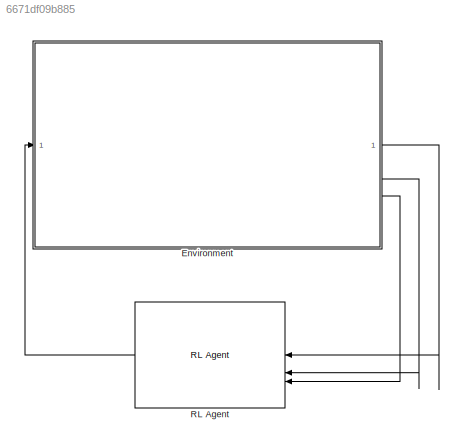
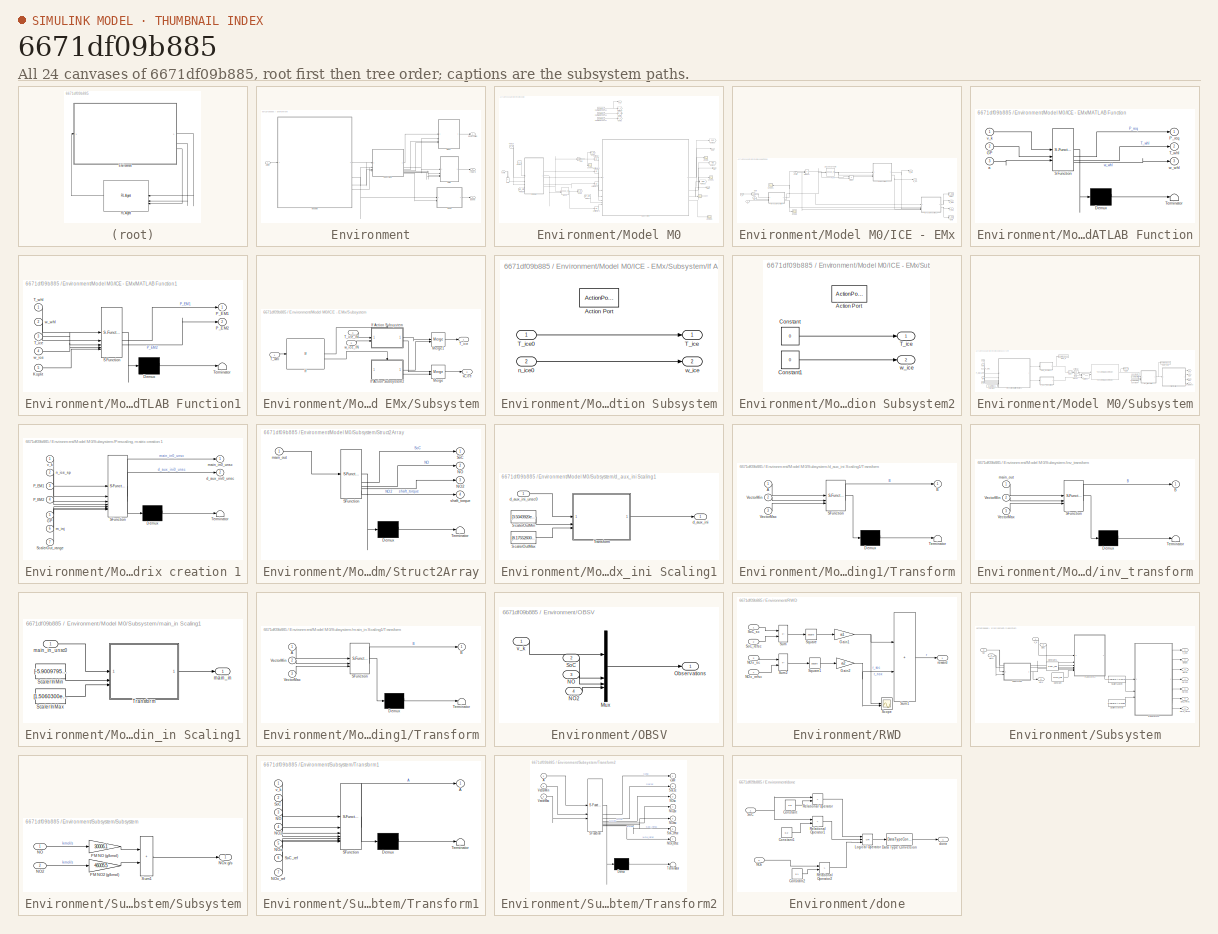
[diagram: thumbnail index - all 24 canvases of the model, root first then tree order]
MODEL slx_6671df09b885
KIND model
CONFIG AbsTol = auto
CONFIG EnableMultiTasking = off
CONFIG FixedStep = auto
CONFIG MaxStep = auto
CONFIG MinStep = auto
CONFIG RelTol = 1e-3
CONFIG SampleTimeConstraint = Unconstrained
CONFIG SolverName = VariableStepAuto
CONFIG StartTime = 0.0
CONFIG StopTime = 5
BLOCK [SubSystem] Environment
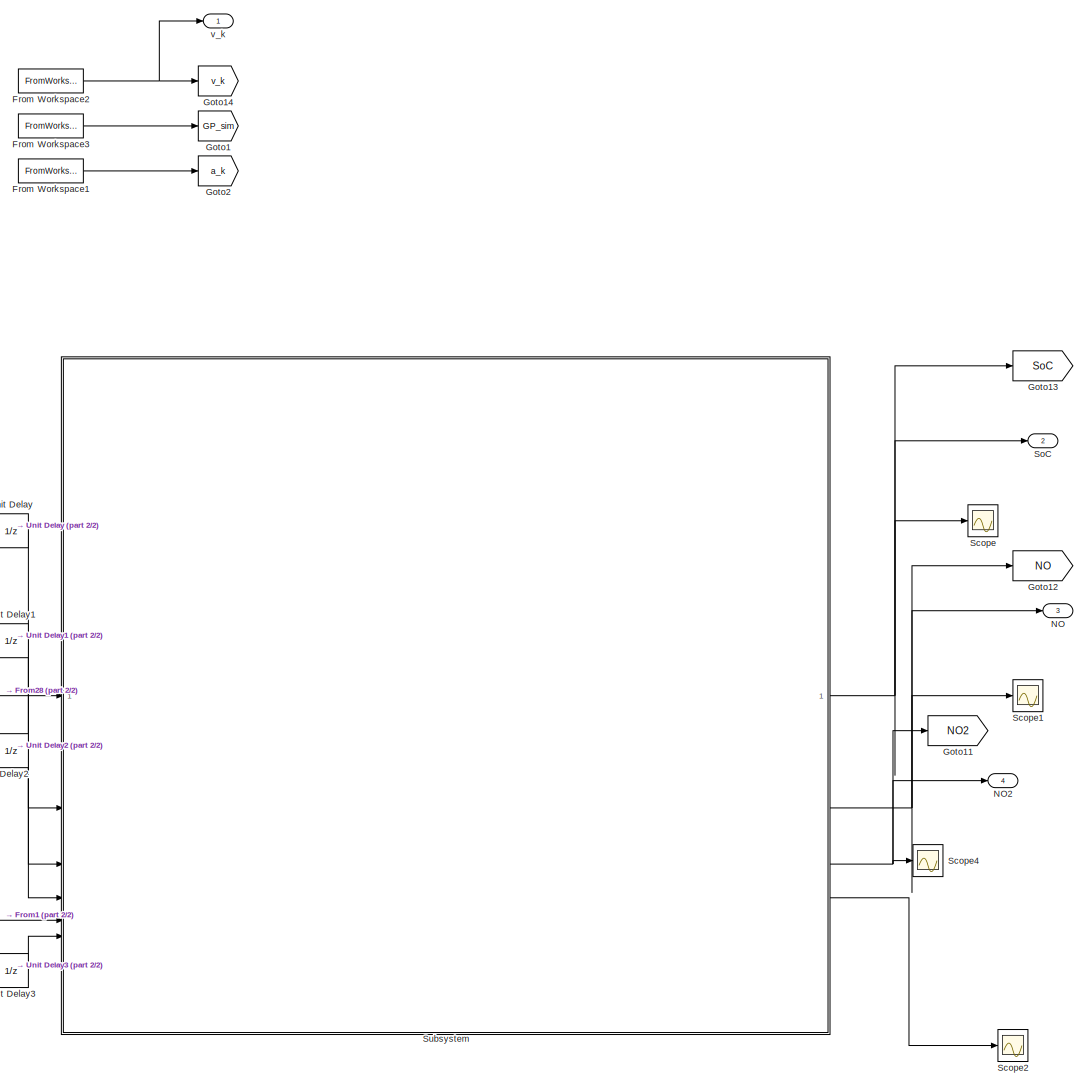
[diagram: Environment/Model M0 - part 1/2, right side, full height]
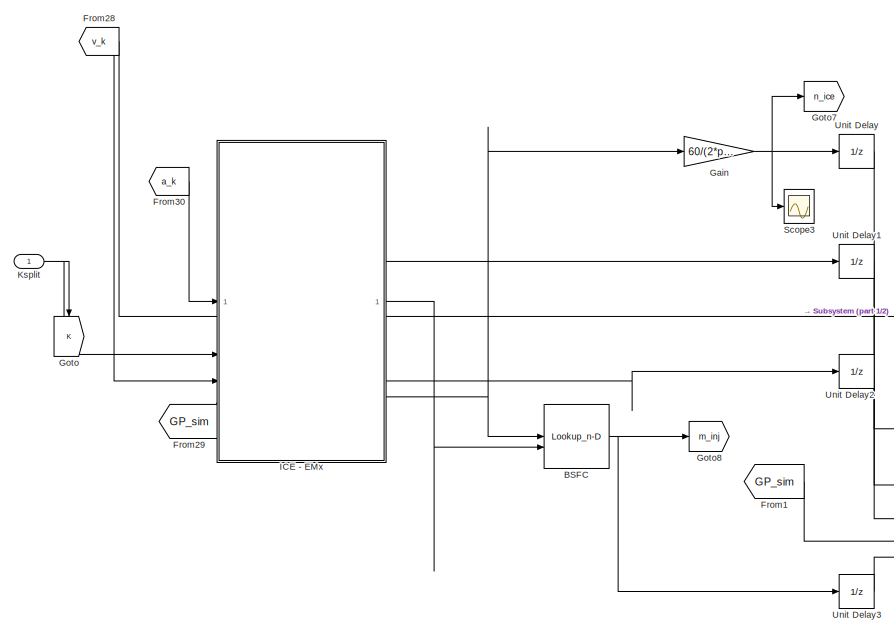
[diagram: Environment/Model M0 - part 2/2, middle left region]
BLOCK [SubSystem] Environment/Model M0
BLOCK [Lookup_n-D] Environment/Model M0/BSFC
  BreakpointsForDimension1 = wice_bp_BSFC
  BreakpointsForDimension2 = Tice_bp_BSFC
  InputPortMap = u0,u1
  InternalRulePriority = Speed
  RndMeth = Simplest
  Table = BSFC
BLOCK [FromWorkspace] Environment/Model M0/From Workspace1
  SampleTime = 1
  VariableName = a_ref
BLOCK [FromWorkspace] Environment/Model M0/From Workspace2
  SampleTime = 1
  VariableName = vk_ref
BLOCK [FromWorkspace] Environment/Model M0/From Workspace3
  SampleTime = 1
  VariableName = GP_ref
BLOCK [From] Environment/Model M0/From1
  GotoTag = GP_sim
  TagVisibility = global
BLOCK [From] Environment/Model M0/From28
  GotoTag = v_k
  TagVisibility = global
BLOCK [From] Environment/Model M0/From29
  GotoTag = GP_sim
  TagVisibility = global
BLOCK [From] Environment/Model M0/From30
  GotoTag = a_k
  TagVisibility = global
BLOCK [Gain] Environment/Model M0/Gain
  Gain = 60/(2*pi)
BLOCK [Goto] Environment/Model M0/Goto
  GotoTag = K
  NameLocation = left
BLOCK [Goto] Environment/Model M0/Goto1
  GotoTag = GP_sim
  TagVisibility = global
BLOCK [Goto] Environment/Model M0/Goto11
  GotoTag = NO2
BLOCK [Goto] Environment/Model M0/Goto12
  GotoTag = NO
BLOCK [Goto] Environment/Model M0/Goto13
  GotoTag = SoC
BLOCK [Goto] Environment/Model M0/Goto14
  GotoTag = v_k
  TagVisibility = global
BLOCK [Goto] Environment/Model M0/Goto2
  GotoTag = a_k
  TagVisibility = global
BLOCK [Goto] Environment/Model M0/Goto7
  GotoTag = n_ice
  TagVisibility = global
BLOCK [Goto] Environment/Model M0/Goto8
  GotoTag = m_inj
  TagVisibility = global
BLOCK [SubSystem] Environment/Model M0/ICE - EMx
BLOCK [Lookup_n-D] Environment/Model M0/ICE - EMx/1-D Lookup Table
  BreakpointsForDimension1 = Eng_pwr_opt_list
  InputPortMap = u0
  InternalRulePriority = Speed
  NumberOfTableDimensions = 1
  RndMeth = Simplest
  Table = W_list
BLOCK [Product] Environment/Model M0/ICE - EMx/Divide
  Inputs = */
BLOCK [Inport] Environment/Model M0/ICE - EMx/GP
  Port = 4
BLOCK [Gain] Environment/Model M0/ICE - EMx/Gain
  Gain = 1/3.6
BLOCK [Goto] Environment/Model M0/ICE - EMx/Goto
  GotoTag = P_EM2
  TagVisibility = global
BLOCK [Goto] Environment/Model M0/ICE - EMx/Goto1
  GotoTag = P_EM1
  TagVisibility = global
BLOCK [Inport] Environment/Model M0/ICE - EMx/Ksplit
  Port = 2
BLOCK [SubSystem] Environment/Model M0/ICE - EMx/MATLAB Function
  ErrorFcn = Stateflow.Translate.translate
  PermitHierarchicalResolution = ExplicitOnly
  SFBlockType = MATLAB Function
  TreatAsAtomicUnit = on
BLOCK [Demux] Environment/Model M0/ICE - EMx/MATLAB Function/ Demux 
  Outputs = 1
BLOCK [S-Function] Environment/Model M0/ICE - EMx/MATLAB Function/ SFunction 
  EnableBusSupport = on
  FunctionName = sf_sfun
  PortCounts = [3 4]
  SFcnIsStateOwnerBlock = off
  SFunctionDeploymentMode = off
  Tag = Stateflow S-Function 6
BLOCK [Terminator] Environment/Model M0/ICE - EMx/MATLAB Function/ Terminator 
BLOCK [Inport] Environment/Model M0/ICE - EMx/MATLAB Function/GP
  Port = 2
BLOCK [Outport] Environment/Model M0/ICE - EMx/MATLAB Function/P_req
BLOCK [Outport] Environment/Model M0/ICE - EMx/MATLAB Function/T_whl
  Port = 2
BLOCK [Inport] Environment/Model M0/ICE - EMx/MATLAB Function/a
  Port = 3
BLOCK [Inport] Environment/Model M0/ICE - EMx/MATLAB Function/v_k
BLOCK [Outport] Environment/Model M0/ICE - EMx/MATLAB Function/w_whl
  Port = 3
BLOCK [SubSystem] Environment/Model M0/ICE - EMx/MATLAB Function1
  ErrorFcn = Stateflow.Translate.translate
  PermitHierarchicalResolution = ExplicitOnly
  SFBlockType = MATLAB Function
  TreatAsAtomicUnit = on
BLOCK [Demux] Environment/Model M0/ICE - EMx/MATLAB Function1/ Demux 
  Outputs = 1
BLOCK [S-Function] Environment/Model M0/ICE - EMx/MATLAB Function1/ SFunction 
  EnableBusSupport = on
  FunctionName = sf_sfun
  PortCounts = [5 3]
  SFcnIsStateOwnerBlock = off
  SFunctionDeploymentMode = off
  Tag = Stateflow S-Function 7
BLOCK [Terminator] Environment/Model M0/ICE - EMx/MATLAB Function1/ Terminator 
BLOCK [Inport] Environment/Model M0/ICE - EMx/MATLAB Function1/Ksplit
  Port = 5
BLOCK [Outport] Environment/Model M0/ICE - EMx/MATLAB Function1/P_EM1
BLOCK [Outport] Environment/Model M0/ICE - EMx/MATLAB Function1/P_EM2
  Port = 2
BLOCK [Inport] Environment/Model M0/ICE - EMx/MATLAB Function1/T_ice
  Port = 3
BLOCK [Inport] Environment/Model M0/ICE - EMx/MATLAB Function1/T_whl
BLOCK [Inport] Environment/Model M0/ICE - EMx/MATLAB Function1/w_ice
  Port = 4
BLOCK [Inport] Environment/Model M0/ICE - EMx/MATLAB Function1/w_whl
  Port = 2
BLOCK [Outport] Environment/Model M0/ICE - EMx/P_EM1
  Port = 2
BLOCK [Outport] Environment/Model M0/ICE - EMx/P_EM2
  Port = 3
BLOCK [Product] Environment/Model M0/ICE - EMx/Product
BLOCK [Scope] Environment/Model M0/ICE - EMx/Scope
  Floating = off
  NumInputPorts = 1
  ScopeSpecificationString = Simulink.scopes.TimeScopeBlockCfg('CurrentConfiguration', extmgr.ConfigurationSet(extmgr.Configuration('Core','General UI',true),extmgr.Configuration('Core','Source UI',true),extmgr.Configuration('Sources','WiredSimulink',true,'DataLoggingVariableName','ScopeData7'),extmgr.Configuration('Visuals','Time Domain',true,'SerializedDisplays',{struct('MinYLimReal','-6.63194','MaxYLimReal','59.6874','YLab...<+1509ch>
BLOCK [Scope] Environment/Model M0/ICE - EMx/Scope1
  Floating = off
  NameLocation = top
  NumInputPorts = 1
  ScopeSpecificationString = Simulink.scopes.TimeScopeBlockCfg('CurrentConfiguration', extmgr.ConfigurationSet(extmgr.Configuration('Core','General UI',true),extmgr.Configuration('Core','Source UI',true),extmgr.Configuration('Sources','WiredSimulink',true,'DataLoggingVariableName','ScopeData8'),extmgr.Configuration('Visuals','Time Domain',true,'SerializedDisplays',{struct('MinYLimReal','-34885.33594','MaxYLimReal','38879.9668...<+1539ch>
BLOCK [SubSystem] Environment/Model M0/ICE - EMx/Subsystem
BLOCK [If] Environment/Model M0/ICE - EMx/Subsystem/If
  IfExpression = u1 >= 0
BLOCK [SubSystem] Environment/Model M0/ICE - EMx/Subsystem/If Action Subsystem
  TreatAsAtomicUnit = on
BLOCK [ActionPort] Environment/Model M0/ICE - EMx/Subsystem/If Action Subsystem/Action Port
  ActionPortLabel = if(u1 >= 0)
BLOCK [Outport] Environment/Model M0/ICE - EMx/Subsystem/If Action Subsystem/T_ice
BLOCK [Inport] Environment/Model M0/ICE - EMx/Subsystem/If Action Subsystem/T_ice0
BLOCK [Inport] Environment/Model M0/ICE - EMx/Subsystem/If Action Subsystem/n_ice0
  Port = 2
BLOCK [Outport] Environment/Model M0/ICE - EMx/Subsystem/If Action Subsystem/w_ice
  Port = 2
BLOCK [SubSystem] Environment/Model M0/ICE - EMx/Subsystem/If Action Subsystem2
  TreatAsAtomicUnit = on
BLOCK [ActionPort] Environment/Model M0/ICE - EMx/Subsystem/If Action Subsystem2/Action Port
  ActionPortLabel = else
BLOCK [Constant] Environment/Model M0/ICE - EMx/Subsystem/If Action Subsystem2/Constant
  SampleTime = 1
  Value = 0
BLOCK [Constant] Environment/Model M0/ICE - EMx/Subsystem/If Action Subsystem2/Constant1
  SampleTime = 1
  Value = 0
BLOCK [Outport] Environment/Model M0/ICE - EMx/Subsystem/If Action Subsystem2/T_ice
BLOCK [Outport] Environment/Model M0/ICE - EMx/Subsystem/If Action Subsystem2/w_ice
  Port = 2
BLOCK [Merge] Environment/Model M0/ICE - EMx/Subsystem/Merge
BLOCK [Merge] Environment/Model M0/ICE - EMx/Subsystem/Merge1
BLOCK [Outport] Environment/Model M0/ICE - EMx/Subsystem/T_ice
BLOCK [Inport] Environment/Model M0/ICE - EMx/Subsystem/T_ice_IN
  Port = 3
BLOCK [Inport] Environment/Model M0/ICE - EMx/Subsystem/T_whl
BLOCK [Outport] Environment/Model M0/ICE - EMx/Subsystem/w_ice
  Port = 2
BLOCK [Inport] Environment/Model M0/ICE - EMx/Subsystem/w_ice_IN
  Port = 2
BLOCK [Outport] Environment/Model M0/ICE - EMx/T_ice
BLOCK [Inport] Environment/Model M0/ICE - EMx/a
BLOCK [Inport] Environment/Model M0/ICE - EMx/v_k
  Port = 3
BLOCK [Outport] Environment/Model M0/ICE - EMx/w_ice
  Port = 4
BLOCK [Inport] Environment/Model M0/Ksplit
BLOCK [Outport] Environment/Model M0/NO
  Port = 3
BLOCK [Outport] Environment/Model M0/NO2
  Port = 4
BLOCK [Scope] Environment/Model M0/Scope
  Floating = off
  NumInputPorts = 1
  ScopeSpecificationString = Simulink.scopes.TimeScopeBlockCfg('CurrentConfiguration', extmgr.ConfigurationSet(extmgr.Configuration('Core','General UI',true),extmgr.Configuration('Core','Source UI',true),extmgr.Configuration('Sources','WiredSimulink',true,'DataLoggingVariableName','ScopeData1'),extmgr.Configuration('Visuals','Time Domain',true,'SerializedDisplays',{struct('MinYLimReal','0.55605','MaxYLimReal','0.59901','YLabe...<+1702ch>
BLOCK [Scope] Environment/Model M0/Scope1
  Floating = off
  NumInputPorts = 1
  ScopeSpecificationString = Simulink.scopes.TimeScopeBlockCfg('CurrentConfiguration', extmgr.ConfigurationSet(extmgr.Configuration('Core','General UI',true),extmgr.Configuration('Core','Source UI',true),extmgr.Configuration('Sources','WiredSimulink',true,'DataLoggingVariableName','ScopeData2'),extmgr.Configuration('Visuals','Time Domain',true,'SerializedDisplays',{struct('MinYLimReal','-0.000007','MaxYLimReal','0.000008','YL...<+1691ch>
BLOCK [Scope] Environment/Model M0/Scope2
  Floating = off
  NumInputPorts = 1
  ScopeSpecificationString = Simulink.scopes.TimeScopeBlockCfg('CurrentConfiguration', extmgr.ConfigurationSet(extmgr.Configuration('Core','General UI',true),extmgr.Configuration('Core','Source UI',true),extmgr.Configuration('Sources','WiredSimulink',true,'DataLoggingVariableName','ScopeData3'),extmgr.Configuration('Visuals','Time Domain',true,'SerializedDisplays',{struct('MinYLimReal','-0.0000000007','MaxYLimReal','0.0000000...<+1590ch>
BLOCK [Scope] Environment/Model M0/Scope3
  Floating = off
  NumInputPorts = 1
  ScopeSpecificationString = Simulink.scopes.TimeScopeBlockCfg('CurrentConfiguration', extmgr.ConfigurationSet(extmgr.Configuration('Core','General UI',true),extmgr.Configuration('Core','Source UI',true),extmgr.Configuration('Sources','WiredSimulink',true,'DataLoggingVariableName','ScopeData4'),extmgr.Configuration('Visuals','Time Domain',true,'SerializedDisplays',{struct('MinYLimReal','-326.36693','MaxYLimReal','2937.30235',...<+1510ch>
BLOCK [Scope] Environment/Model M0/Scope4
  Floating = off
  NumInputPorts = 1
  ScopeSpecificationString = Simulink.scopes.TimeScopeBlockCfg('CurrentConfiguration', extmgr.ConfigurationSet(extmgr.Configuration('Core','General UI',true),extmgr.Configuration('Core','Source UI',true),extmgr.Configuration('Sources','WiredSimulink',true,'DataLoggingVariableName','ScopeData5'),extmgr.Configuration('Visuals','Time Domain',true,'SerializedDisplays',{struct('MinYLimReal','-0.000007','MaxYLimReal','0.000008','YL...<+1691ch>
BLOCK [Outport] Environment/Model M0/SoC
  Port = 2
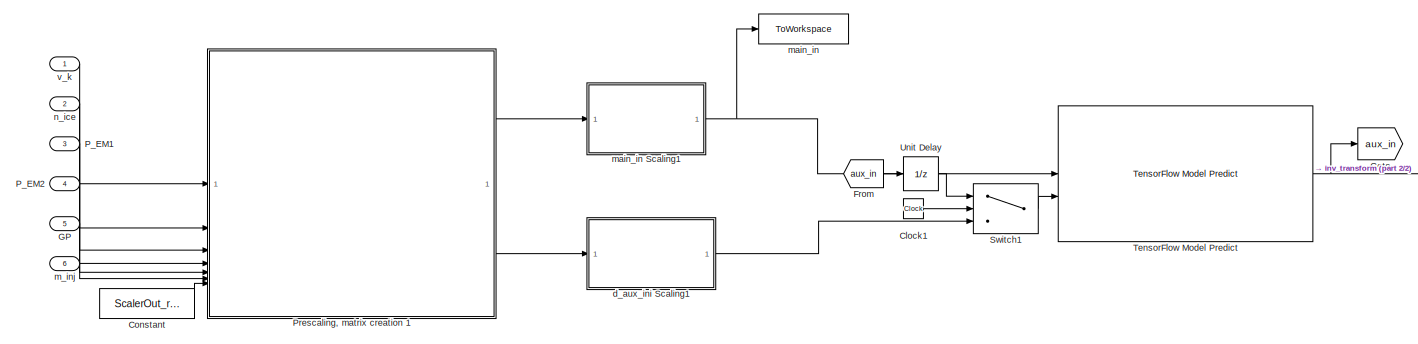
[diagram: Environment/Model M0/Subsystem - part 1/2, center side, full height]
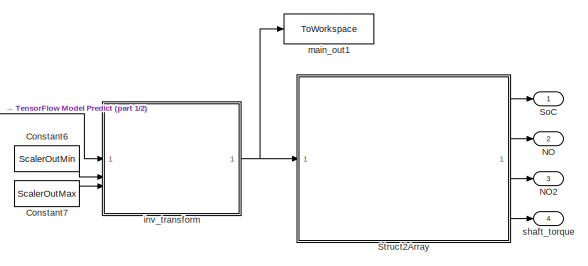
[diagram: Environment/Model M0/Subsystem - part 2/2, middle right region]
BLOCK [SubSystem] Environment/Model M0/Subsystem
BLOCK [Clock] Environment/Model M0/Subsystem/Clock1
BLOCK [Constant] Environment/Model M0/Subsystem/Constant
  Value = ScalerOut_range
BLOCK [Constant] Environment/Model M0/Subsystem/Constant6
  Value = ScalerOutMin
BLOCK [Constant] Environment/Model M0/Subsystem/Constant7
  Value = ScalerOutMax
BLOCK [From] Environment/Model M0/Subsystem/From
  GotoTag = aux_in
  TagVisibility = global
BLOCK [Inport] Environment/Model M0/Subsystem/GP
  Port = 5
BLOCK [Goto] Environment/Model M0/Subsystem/Goto
  GotoTag = aux_in
  TagVisibility = global
BLOCK [Outport] Environment/Model M0/Subsystem/NO
  Port = 2
BLOCK [Outport] Environment/Model M0/Subsystem/NO2
  Port = 3
BLOCK [Inport] Environment/Model M0/Subsystem/P_EM1
  Port = 3
BLOCK [Inport] Environment/Model M0/Subsystem/P_EM2
  Port = 4
BLOCK [SubSystem] Environment/Model M0/Subsystem/Prescaling, matrix creation 1
  ErrorFcn = Stateflow.Translate.translate
  PermitHierarchicalResolution = ExplicitOnly
  SFBlockType = MATLAB Function
  TreatAsAtomicUnit = on
BLOCK [Demux] Environment/Model M0/Subsystem/Prescaling, matrix creation 1/ Demux 
  Outputs = 1
BLOCK [S-Function] Environment/Model M0/Subsystem/Prescaling, matrix creation 1/ SFunction 
  EnableBusSupport = on
  FunctionName = sf_sfun
  PortCounts = [7 3]
  SFcnIsStateOwnerBlock = off
  SFunctionDeploymentMode = off
  Tag = Stateflow S-Function 2
BLOCK [Terminator] Environment/Model M0/Subsystem/Prescaling, matrix creation 1/ Terminator 
BLOCK [Inport] Environment/Model M0/Subsystem/Prescaling, matrix creation 1/GP
  Port = 5
BLOCK [Inport] Environment/Model M0/Subsystem/Prescaling, matrix creation 1/P_EM1
  Port = 3
BLOCK [Inport] Environment/Model M0/Subsystem/Prescaling, matrix creation 1/P_EM2
  Port = 4
BLOCK [Inport] Environment/Model M0/Subsystem/Prescaling, matrix creation 1/ScalerOut_range
  Port = 7
BLOCK [Outport] Environment/Model M0/Subsystem/Prescaling, matrix creation 1/d_aux_ini0_unsc
  Port = 2
BLOCK [Inport] Environment/Model M0/Subsystem/Prescaling, matrix creation 1/m_inj
  Port = 6
BLOCK [Outport] Environment/Model M0/Subsystem/Prescaling, matrix creation 1/main_in0_unsc
BLOCK [Inport] Environment/Model M0/Subsystem/Prescaling, matrix creation 1/n_ice_sp
  Port = 2
BLOCK [Inport] Environment/Model M0/Subsystem/Prescaling, matrix creation 1/v_k
BLOCK [Outport] Environment/Model M0/Subsystem/SoC
BLOCK [SubSystem] Environment/Model M0/Subsystem/Struct2Array
  ErrorFcn = Stateflow.Translate.translate
  PermitHierarchicalResolution = ExplicitOnly
  SFBlockType = MATLAB Function
  TreatAsAtomicUnit = on
BLOCK [Demux] Environment/Model M0/Subsystem/Struct2Array/ Demux 
  Outputs = 1
BLOCK [S-Function] Environment/Model M0/Subsystem/Struct2Array/ SFunction 
  EnableBusSupport = on
  FunctionName = sf_sfun
  PortCounts = [1 5]
  SFcnIsStateOwnerBlock = off
  SFunctionDeploymentMode = off
  Tag = Stateflow S-Function 3
BLOCK [Terminator] Environment/Model M0/Subsystem/Struct2Array/ Terminator 
BLOCK [Outport] Environment/Model M0/Subsystem/Struct2Array/NO
  Port = 2
BLOCK [Outport] Environment/Model M0/Subsystem/Struct2Array/NO2
  Port = 3
BLOCK [Outport] Environment/Model M0/Subsystem/Struct2Array/SoC
BLOCK [Inport] Environment/Model M0/Subsystem/Struct2Array/main_out
BLOCK [Outport] Environment/Model M0/Subsystem/Struct2Array/shaft_torque
  Port = 4
BLOCK [Switch] Environment/Model M0/Subsystem/Switch1
  InputSameDT = off
  OutDataTypeStr = double
  SaturateOnIntegerOverflow = off
  Threshold = 1
BLOCK [Reference] Environment/Model M0/Subsystem/TensorFlow Model Predict  REF=pycoexlib/TensorFlow Model Predict
  SourceBlock = pycoexlib/TensorFlow Model Predict
  SourceType = TensorFlowModelPredict
BLOCK [UnitDelay] Environment/Model M0/Subsystem/Unit Delay
  HasFrameUpgradeWarning = on
  SampleTime = -1
BLOCK [SubSystem] Environment/Model M0/Subsystem/d_aux_ini Scaling1
BLOCK [Constant] Environment/Model M0/Subsystem/d_aux_ini Scaling1/ScalerOutMax
  Value = [8.17552600e-01 3.79204100e-06 1.99143300e-09 1.02194086e-01]
BLOCK [Constant] Environment/Model M0/Subsystem/d_aux_ini Scaling1/ScalerOutMin
  Value = [3.5043920e-01 1.5963114e-10 3.6094947e-13 -7.3952870e-02]
BLOCK [SubSystem] Environment/Model M0/Subsystem/d_aux_ini Scaling1/Transform
  ErrorFcn = Stateflow.Translate.translate
  PermitHierarchicalResolution = ExplicitOnly
  SFBlockType = MATLAB Function
  TreatAsAtomicUnit = on
BLOCK [Demux] Environment/Model M0/Subsystem/d_aux_ini Scaling1/Transform/ Demux 
  Outputs = 1
BLOCK [S-Function] Environment/Model M0/Subsystem/d_aux_ini Scaling1/Transform/ SFunction 
  EnableBusSupport = on
  FunctionName = sf_sfun
  PortCounts = [3 2]
  SFcnIsStateOwnerBlock = off
  SFunctionDeploymentMode = off
  Tag = Stateflow S-Function 4
BLOCK [Terminator] Environment/Model M0/Subsystem/d_aux_ini Scaling1/Transform/ Terminator 
BLOCK [Inport] Environment/Model M0/Subsystem/d_aux_ini Scaling1/Transform/A
BLOCK [Outport] Environment/Model M0/Subsystem/d_aux_ini Scaling1/Transform/B
BLOCK [Inport] Environment/Model M0/Subsystem/d_aux_ini Scaling1/Transform/VectorMax
  Port = 3
BLOCK [Inport] Environment/Model M0/Subsystem/d_aux_ini Scaling1/Transform/VectorMin
  Port = 2
BLOCK [Outport] Environment/Model M0/Subsystem/d_aux_ini Scaling1/d_aux_ini
BLOCK [Inport] Environment/Model M0/Subsystem/d_aux_ini Scaling1/d_aux_ini_unsc0
BLOCK [SubSystem] Environment/Model M0/Subsystem/inv_transform
  ErrorFcn = Stateflow.Translate.translate
  PermitHierarchicalResolution = ExplicitOnly
  SFBlockType = MATLAB Function
  TreatAsAtomicUnit = on
BLOCK [Demux] Environment/Model M0/Subsystem/inv_transform/ Demux 
  Outputs = 1
BLOCK [S-Function] Environment/Model M0/Subsystem/inv_transform/ SFunction 
  EnableBusSupport = on
  FunctionName = sf_sfun
  PortCounts = [3 2]
  SFcnIsStateOwnerBlock = off
  SFunctionDeploymentMode = off
  Tag = Stateflow S-Function 1
BLOCK [Terminator] Environment/Model M0/Subsystem/inv_transform/ Terminator 
BLOCK [Outport] Environment/Model M0/Subsystem/inv_transform/B
BLOCK [Inport] Environment/Model M0/Subsystem/inv_transform/VectorMax
  Port = 3
BLOCK [Inport] Environment/Model M0/Subsystem/inv_transform/VectorMin
  Port = 2
BLOCK [Inport] Environment/Model M0/Subsystem/inv_transform/main_out
BLOCK [Inport] Environment/Model M0/Subsystem/m_inj
  Port = 6
BLOCK [ToWorkspace] Environment/Model M0/Subsystem/main_in
  FixptAsFi = on
  MaxDataPoints = inf
  SampleTime = 1
  VariableName = main_in
BLOCK [SubSystem] Environment/Model M0/Subsystem/main_in Scaling1
BLOCK [Constant] Environment/Model M0/Subsystem/main_in Scaling1/ScalerInMax
  Value = [1.5060300e+02; 2.8380360e+03; 8.5859970e+00; 5.1123200e+01; 4.4160643e+00; 1.2493309e+00]
BLOCK [Constant] Environment/Model M0/Subsystem/main_in Scaling1/ScalerInMin
  Value = [-5.9009795; 1287.4781; -54.729496;  -3.403699; -4.377029; 0.]
BLOCK [SubSystem] Environment/Model M0/Subsystem/main_in Scaling1/Transform
  ErrorFcn = Stateflow.Translate.translate
  PermitHierarchicalResolution = ExplicitOnly
  SFBlockType = MATLAB Function
  TreatAsAtomicUnit = on
BLOCK [Demux] Environment/Model M0/Subsystem/main_in Scaling1/Transform/ Demux 
  Outputs = 1
BLOCK [S-Function] Environment/Model M0/Subsystem/main_in Scaling1/Transform/ SFunction 
  EnableBusSupport = on
  FunctionName = sf_sfun
  PortCounts = [3 2]
  SFcnIsStateOwnerBlock = off
  SFunctionDeploymentMode = off
  Tag = Stateflow S-Function 13
BLOCK [Terminator] Environment/Model M0/Subsystem/main_in Scaling1/Transform/ Terminator 
BLOCK [Inport] Environment/Model M0/Subsystem/main_in Scaling1/Transform/A
BLOCK [Outport] Environment/Model M0/Subsystem/main_in Scaling1/Transform/B
BLOCK [Inport] Environment/Model M0/Subsystem/main_in Scaling1/Transform/VectorMax
  Port = 3
BLOCK [Inport] Environment/Model M0/Subsystem/main_in Scaling1/Transform/VectorMin
  Port = 2
BLOCK [Outport] Environment/Model M0/Subsystem/main_in Scaling1/main_in
BLOCK [Inport] Environment/Model M0/Subsystem/main_in Scaling1/main_in_unsc0
BLOCK [ToWorkspace] Environment/Model M0/Subsystem/main_out1
  FixptAsFi = on
  MaxDataPoints = inf
  SampleTime = 1
  VariableName = main_out1
BLOCK [Inport] Environment/Model M0/Subsystem/n_ice
  Port = 2
BLOCK [Outport] Environment/Model M0/Subsystem/shaft_torque
  Port = 4
BLOCK [Inport] Environment/Model M0/Subsystem/v_k
BLOCK [UnitDelay] Environment/Model M0/Unit Delay
  HasFrameUpgradeWarning = on
  SampleTime = -1
BLOCK [UnitDelay] Environment/Model M0/Unit Delay1
  HasFrameUpgradeWarning = on
  SampleTime = -1
BLOCK [UnitDelay] Environment/Model M0/Unit Delay2
  HasFrameUpgradeWarning = on
  SampleTime = -1
BLOCK [UnitDelay] Environment/Model M0/Unit Delay3
  HasFrameUpgradeWarning = on
  SampleTime = -1
BLOCK [Outport] Environment/Model M0/v_k
BLOCK [SubSystem] Environment/OBSV
BLOCK [Mux] Environment/OBSV/Mux
  DisplayOption = bar
BLOCK [Inport] Environment/OBSV/NO
  Port = 3
BLOCK [Inport] Environment/OBSV/NO2
  Port = 4
BLOCK [Outport] Environment/OBSV/Observations
BLOCK [Inport] Environment/OBSV/SoC
  Port = 2
BLOCK [Inport] Environment/OBSV/v_k
BLOCK [SubSystem] Environment/RWD
BLOCK [Gain] Environment/RWD/Gain1
  Gain = a1
BLOCK [Gain] Environment/RWD/Gain2
  Gain = a2
BLOCK [Inport] Environment/RWD/NOx_refsc
  Port = 4
BLOCK [Inport] Environment/RWD/NOx_sc
  Port = 3
BLOCK [Scope] Environment/RWD/Scope
  Floating = off
  NumInputPorts = 2
  ScopeSpecificationString = Simulink.scopes.TimeScopeBlockCfg('CurrentConfiguration', extmgr.ConfigurationSet(extmgr.Configuration('Core','General UI',true),extmgr.Configuration('Core','Source UI',true),extmgr.Configuration('Sources','WiredSimulink',true,'DataLoggingVariableName','ScopeData5'),extmgr.Configuration('Visuals','Time Domain',true,'SerializedDisplays',{struct('MinYLimReal','-10','MaxYLimReal','10','YLabelReal',''...<+1448ch>
BLOCK [Inport] Environment/RWD/SoC_refsc
  Port = 2
BLOCK [Inport] Environment/RWD/SoC_sc
BLOCK [Math] Environment/RWD/Square
  Operator = square
BLOCK [Math] Environment/RWD/Square1
  Operator = square
BLOCK [Sum] Environment/RWD/Sum
  IconShape = rectangular
  Inputs = +-
BLOCK [Sum] Environment/RWD/Sum1
  IconShape = rectangular
BLOCK [Sum] Environment/RWD/Sum2
  IconShape = rectangular
  Inputs = +-
BLOCK [Outport] Environment/RWD/reward
BLOCK [SubSystem] Environment/Subsystem
BLOCK [Constant] Environment/Subsystem/Constant
  Value = NOx_ref
BLOCK [Constant] Environment/Subsystem/Constant1
  Value = SoC_ref
BLOCK [Inport] Environment/Subsystem/NO
  Port = 3
BLOCK [Inport] Environment/Subsystem/NO2
  Port = 4
BLOCK [Outport] Environment/Subsystem/NO2sc
  Port = 4
BLOCK [Outport] Environment/Subsystem/NOsc
  Port = 3
BLOCK [Outport] Environment/Subsystem/NOx
  Port = 8
BLOCK [Outport] Environment/Subsystem/NOx_refsc
  Port = 7
BLOCK [Outport] Environment/Subsystem/NOxsc
  Port = 5
BLOCK [Constant] Environment/Subsystem/ScalerOutMax
  Value = ScalerSACMax
BLOCK [Constant] Environment/Subsystem/ScalerSACMin
  Value = ScalerSACMin
BLOCK [Inport] Environment/Subsystem/SoC
  Port = 2
BLOCK [Outport] Environment/Subsystem/SoC_refsc
  Port = 6
BLOCK [Outport] Environment/Subsystem/SoCsc
  Port = 2
BLOCK [SubSystem] Environment/Subsystem/Subsystem
BLOCK [Inport] Environment/Subsystem/Subsystem/NO
BLOCK [Inport] Environment/Subsystem/Subsystem/NO2
  Port = 2
BLOCK [Outport] Environment/Subsystem/Subsystem/NOx g//s
BLOCK [Gain] Environment/Subsystem/Subsystem/PM NO (g//kmol)
  Gain = 30006.1
BLOCK [Gain] Environment/Subsystem/Subsystem/PM NO2 (g//kmol)
  Gain = 46005.5
BLOCK [Sum] Environment/Subsystem/Subsystem/Sum1
  IconShape = rectangular
BLOCK [SubSystem] Environment/Subsystem/Transform1
  ErrorFcn = Stateflow.Translate.translate
  PermitHierarchicalResolution = ExplicitOnly
  SFBlockType = MATLAB Function
  TreatAsAtomicUnit = on
BLOCK [Demux] Environment/Subsystem/Transform1/ Demux 
  Outputs = 1
BLOCK [S-Function] Environment/Subsystem/Transform1/ SFunction 
  EnableBusSupport = on
  FunctionName = sf_sfun
  PortCounts = [7 2]
  SFcnIsStateOwnerBlock = off
  SFunctionDeploymentMode = off
  Tag = Stateflow S-Function 8
BLOCK [Terminator] Environment/Subsystem/Transform1/ Terminator 
BLOCK [Outport] Environment/Subsystem/Transform1/A
BLOCK [Inport] Environment/Subsystem/Transform1/NO
  Port = 3
BLOCK [Inport] Environment/Subsystem/Transform1/NO2
  Port = 4
BLOCK [Inport] Environment/Subsystem/Transform1/NOx
  Port = 5
BLOCK [Inport] Environment/Subsystem/Transform1/NOx_ref
  Port = 7
BLOCK [Inport] Environment/Subsystem/Transform1/SoC
  Port = 2
BLOCK [Inport] Environment/Subsystem/Transform1/SoC_ref
  Port = 6
BLOCK [Inport] Environment/Subsystem/Transform1/v_k
BLOCK [SubSystem] Environment/Subsystem/Transform2
  ErrorFcn = Stateflow.Translate.translate
  PermitHierarchicalResolution = ExplicitOnly
  SFBlockType = MATLAB Function
  TreatAsAtomicUnit = on
BLOCK [Demux] Environment/Subsystem/Transform2/ Demux 
  Outputs = 1
BLOCK [S-Function] Environment/Subsystem/Transform2/ SFunction 
  EnableBusSupport = on
  FunctionName = sf_sfun
  PortCounts = [3 8]
  SFcnIsStateOwnerBlock = off
  SFunctionDeploymentMode = off
  Tag = Stateflow S-Function 9
BLOCK [Terminator] Environment/Subsystem/Transform2/ Terminator 
BLOCK [Inport] Environment/Subsystem/Transform2/A
BLOCK [Outport] Environment/Subsystem/Transform2/NO2sc
  Port = 4
BLOCK [Outport] Environment/Subsystem/Transform2/NOsc
  Port = 3
BLOCK [Outport] Environment/Subsystem/Transform2/NOx_refsc
  Port = 7
BLOCK [Outport] Environment/Subsystem/Transform2/NOxsc
  Port = 5
BLOCK [Outport] Environment/Subsystem/Transform2/SoC_refsc
  Port = 6
BLOCK [Outport] Environment/Subsystem/Transform2/SoCsc
  Port = 2
BLOCK [Inport] Environment/Subsystem/Transform2/VectorMax
  Port = 3
BLOCK [Inport] Environment/Subsystem/Transform2/VectorMin
  Port = 2
BLOCK [Outport] Environment/Subsystem/Transform2/v_ksc
BLOCK [Inport] Environment/Subsystem/v_k
BLOCK [Outport] Environment/Subsystem/v_ksc
BLOCK [Inport] Environment/action
BLOCK [SubSystem] Environment/done
BLOCK [Constant] Environment/done/Constant
  Value = 0.8
BLOCK [Constant] Environment/done/Constant1
  Value = 0.2
BLOCK [Constant] Environment/done/Constant2
  Value = 0.1
BLOCK [DataTypeConversion] Environment/done/Data Type Conversion
  OutDataTypeStr = boolean
  RndMeth = Floor
  SaturateOnIntegerOverflow = off
BLOCK [Logic] Environment/done/Logical Operator
  AllPortsSameDT = off
  Inputs = 3
  Operator = OR
  OutDataTypeStr = boolean
BLOCK [Inport] Environment/done/NOx
  Port = 2
BLOCK [RelationalOperator] Environment/done/Relational Operator
  InputSameDT = off
  Operator = >
  OutDataTypeStr = boolean
  RndMeth = Simplest
BLOCK [RelationalOperator] Environment/done/Relational Operator1
  InputSameDT = off
  Operator = <
  OutDataTypeStr = boolean
  RndMeth = Simplest
BLOCK [RelationalOperator] Environment/done/Relational Operator2
  InputSameDT = off
  Operator = >
  OutDataTypeStr = boolean
  RndMeth = Simplest
BLOCK [Inport] Environment/done/SoC
BLOCK [Outport] Environment/done/done
BLOCK [Outport] Environment/isdone
  Port = 3
BLOCK [Outport] Environment/observation
BLOCK [Outport] Environment/reward
  Port = 2
BLOCK [Reference] RL Agent  REF=rllib/RL Agent
  NameLocation = top
  SourceBlock = rllib/RL Agent
  SourceType = RL Agent
NET Environment/Model M0/BSFC:1 -> Environment/Model M0/Goto8:1, Environment/Model M0/Unit Delay3:1
LINE Environment/Model M0/From Workspace1:1 -> Environment/Model M0/Goto2:1
NET Environment/Model M0/From Workspace2:1 -> Environment/Model M0/Goto14:1, Environment/Model M0/v_k:1
LINE Environment/Model M0/From Workspace3:1 -> Environment/Model M0/Goto1:1
LINE Environment/Model M0/From1:1 -> Environment/Model M0/Subsystem:5
NET Environment/Model M0/From28:1 -> Environment/Model M0/ICE - EMx:3, Environment/Model M0/Subsystem:1
LINE Environment/Model M0/From29:1 -> Environment/Model M0/ICE - EMx:4
LINE Environment/Model M0/From30:1 -> Environment/Model M0/ICE - EMx:1
NET Environment/Model M0/Gain:1 -> Environment/Model M0/Goto7:1, Environment/Model M0/Scope3:1, Environment/Model M0/Unit Delay:1
NET Environment/Model M0/ICE - EMx/1-D Lookup Table:1 -> Environment/Model M0/ICE - EMx/Divide:2, Environment/Model M0/ICE - EMx/Subsystem:2
LINE Environment/Model M0/ICE - EMx/Divide:1 -> Environment/Model M0/ICE - EMx/Subsystem:3
LINE Environment/Model M0/ICE - EMx/GP:1 -> Environment/Model M0/ICE - EMx/MATLAB Function:2
LINE Environment/Model M0/ICE - EMx/Gain:1 -> Environment/Model M0/ICE - EMx/MATLAB Function:1
NET Environment/Model M0/ICE - EMx/Ksplit:1 -> Environment/Model M0/ICE - EMx/MATLAB Function1:5, Environment/Model M0/ICE - EMx/Product:2
NET Environment/Model M0/ICE - EMx/MATLAB Function1:1 -> Environment/Model M0/ICE - EMx/Goto1:1, Environment/Model M0/ICE - EMx/P_EM1:1
NET Environment/Model M0/ICE - EMx/MATLAB Function1:2 -> Environment/Model M0/ICE - EMx/Goto:1, Environment/Model M0/ICE - EMx/P_EM2:1
NET Environment/Model M0/ICE - EMx/MATLAB Function:1 -> Environment/Model M0/ICE - EMx/Product:1, Environment/Model M0/ICE - EMx/Scope1:1
NET Environment/Model M0/ICE - EMx/MATLAB Function:2 -> Environment/Model M0/ICE - EMx/MATLAB Function1:1, Environment/Model M0/ICE - EMx/Subsystem:1
NET Environment/Model M0/ICE - EMx/MATLAB Function:3 -> Environment/Model M0/ICE - EMx/MATLAB Function1:2, Environment/Model M0/ICE - EMx/Scope:1
NET Environment/Model M0/ICE - EMx/Product:1 -> Environment/Model M0/ICE - EMx/1-D Lookup Table:1, Environment/Model M0/ICE - EMx/Divide:1
LINE Environment/Model M0/ICE - EMx/Subsystem/If Action Subsystem/T_ice0:1 -> Environment/Model M0/ICE - EMx/Subsystem/If Action Subsystem/T_ice:1
LINE Environment/Model M0/ICE - EMx/Subsystem/If Action Subsystem/n_ice0:1 -> Environment/Model M0/ICE - EMx/Subsystem/If Action Subsystem/w_ice:1
LINE Environment/Model M0/ICE - EMx/Subsystem/If Action Subsystem2/Constant1:1 -> Environment/Model M0/ICE - EMx/Subsystem/If Action Subsystem2/w_ice:1
LINE Environment/Model M0/ICE - EMx/Subsystem/If Action Subsystem2/Constant:1 -> Environment/Model M0/ICE - EMx/Subsystem/If Action Subsystem2/T_ice:1
LINE Environment/Model M0/ICE - EMx/Subsystem/If Action Subsystem2:1 -> Environment/Model M0/ICE - EMx/Subsystem/Merge1:2
LINE Environment/Model M0/ICE - EMx/Subsystem/If Action Subsystem2:2 -> Environment/Model M0/ICE - EMx/Subsystem/Merge:2
LINE Environment/Model M0/ICE - EMx/Subsystem/If Action Subsystem:1 -> Environment/Model M0/ICE - EMx/Subsystem/Merge1:1
LINE Environment/Model M0/ICE - EMx/Subsystem/If Action Subsystem:2 -> Environment/Model M0/ICE - EMx/Subsystem/Merge:1
LINE Environment/Model M0/ICE - EMx/Subsystem/If:1 -> Environment/Model M0/ICE - EMx/Subsystem/If Action Subsystem:ifaction
LINE Environment/Model M0/ICE - EMx/Subsystem/If:2 -> Environment/Model M0/ICE - EMx/Subsystem/If Action Subsystem2:ifaction
LINE Environment/Model M0/ICE - EMx/Subsystem/Merge1:1 -> Environment/Model M0/ICE - EMx/Subsystem/T_ice:1
LINE Environment/Model M0/ICE - EMx/Subsystem/Merge:1 -> Environment/Model M0/ICE - EMx/Subsystem/w_ice:1
LINE Environment/Model M0/ICE - EMx/Subsystem/T_ice_IN:1 -> Environment/Model M0/ICE - EMx/Subsystem/If Action Subsystem:1
LINE Environment/Model M0/ICE - EMx/Subsystem/T_whl:1 -> Environment/Model M0/ICE - EMx/Subsystem/If:1
LINE Environment/Model M0/ICE - EMx/Subsystem/w_ice_IN:1 -> Environment/Model M0/ICE - EMx/Subsystem/If Action Subsystem:2
NET Environment/Model M0/ICE - EMx/Subsystem:1 -> Environment/Model M0/ICE - EMx/MATLAB Function1:3, Environment/Model M0/ICE - EMx/T_ice:1
NET Environment/Model M0/ICE - EMx/Subsystem:2 -> Environment/Model M0/ICE - EMx/MATLAB Function1:4, Environment/Model M0/ICE - EMx/w_ice:1
LINE Environment/Model M0/ICE - EMx/a:1 -> Environment/Model M0/ICE - EMx/MATLAB Function:3
LINE Environment/Model M0/ICE - EMx/v_k:1 -> Environment/Model M0/ICE - EMx/Gain:1
LINE Environment/Model M0/ICE - EMx:1 -> Environment/Model M0/BSFC:2
LINE Environment/Model M0/ICE - EMx:2 -> Environment/Model M0/Unit Delay1:1
LINE Environment/Model M0/ICE - EMx:3 -> Environment/Model M0/Unit Delay2:1
NET Environment/Model M0/ICE - EMx:4 -> Environment/Model M0/BSFC:1, Environment/Model M0/Gain:1
NET Environment/Model M0/Ksplit:1 -> Environment/Model M0/Goto:1, Environment/Model M0/ICE - EMx:2
LINE Environment/Model M0/Subsystem/Clock1:1 -> Environment/Model M0/Subsystem/Switch1:2
LINE Environment/Model M0/Subsystem/Constant6:1 -> Environment/Model M0/Subsystem/inv_transform:2
LINE Environment/Model M0/Subsystem/Constant7:1 -> Environment/Model M0/Subsystem/inv_transform:3
LINE Environment/Model M0/Subsystem/Constant:1 -> Environment/Model M0/Subsystem/Prescaling, matrix creation 1:7
LINE Environment/Model M0/Subsystem/From:1 -> Environment/Model M0/Subsystem/Unit Delay:1
LINE Environment/Model M0/Subsystem/GP:1 -> Environment/Model M0/Subsystem/Prescaling, matrix creation 1:5
LINE Environment/Model M0/Subsystem/P_EM1:1 -> Environment/Model M0/Subsystem/Prescaling, matrix creation 1:3
LINE Environment/Model M0/Subsystem/P_EM2:1 -> Environment/Model M0/Subsystem/Prescaling, matrix creation 1:4
LINE Environment/Model M0/Subsystem/Prescaling, matrix creation 1:1 -> Environment/Model M0/Subsystem/main_in Scaling1:1
LINE Environment/Model M0/Subsystem/Prescaling, matrix creation 1:2 -> Environment/Model M0/Subsystem/d_aux_ini Scaling1:1
LINE Environment/Model M0/Subsystem/Struct2Array:1 -> Environment/Model M0/Subsystem/SoC:1
LINE Environment/Model M0/Subsystem/Struct2Array:2 -> Environment/Model M0/Subsystem/NO:1
LINE Environment/Model M0/Subsystem/Struct2Array:3 -> Environment/Model M0/Subsystem/NO2:1
LINE Environment/Model M0/Subsystem/Struct2Array:4 -> Environment/Model M0/Subsystem/shaft_torque:1
LINE Environment/Model M0/Subsystem/Switch1:1 -> Environment/Model M0/Subsystem/TensorFlow Model Predict:2
NET Environment/Model M0/Subsystem/TensorFlow Model Predict:1 -> Environment/Model M0/Subsystem/Goto:1, Environment/Model M0/Subsystem/inv_transform:1
LINE Environment/Model M0/Subsystem/Unit Delay:1 -> Environment/Model M0/Subsystem/Switch1:1
LINE Environment/Model M0/Subsystem/d_aux_ini Scaling1/ScalerOutMax:1 -> Environment/Model M0/Subsystem/d_aux_ini Scaling1/Transform:3
LINE Environment/Model M0/Subsystem/d_aux_ini Scaling1/ScalerOutMin:1 -> Environment/Model M0/Subsystem/d_aux_ini Scaling1/Transform:2
LINE Environment/Model M0/Subsystem/d_aux_ini Scaling1/Transform:1 -> Environment/Model M0/Subsystem/d_aux_ini Scaling1/d_aux_ini:1
LINE Environment/Model M0/Subsystem/d_aux_ini Scaling1/d_aux_ini_unsc0:1 -> Environment/Model M0/Subsystem/d_aux_ini Scaling1/Transform:1
LINE Environment/Model M0/Subsystem/d_aux_ini Scaling1:1 -> Environment/Model M0/Subsystem/Switch1:3
NET Environment/Model M0/Subsystem/inv_transform:1 -> Environment/Model M0/Subsystem/Struct2Array:1, Environment/Model M0/Subsystem/main_out1:1
LINE Environment/Model M0/Subsystem/m_inj:1 -> Environment/Model M0/Subsystem/Prescaling, matrix creation 1:6
LINE Environment/Model M0/Subsystem/main_in Scaling1/ScalerInMax:1 -> Environment/Model M0/Subsystem/main_in Scaling1/Transform:3
LINE Environment/Model M0/Subsystem/main_in Scaling1/ScalerInMin:1 -> Environment/Model M0/Subsystem/main_in Scaling1/Transform:2
LINE Environment/Model M0/Subsystem/main_in Scaling1/Transform:1 -> Environment/Model M0/Subsystem/main_in Scaling1/main_in:1
LINE Environment/Model M0/Subsystem/main_in Scaling1/main_in_unsc0:1 -> Environment/Model M0/Subsystem/main_in Scaling1/Transform:1
NET Environment/Model M0/Subsystem/main_in Scaling1:1 -> Environment/Model M0/Subsystem/TensorFlow Model Predict:1, Environment/Model M0/Subsystem/main_in:1
LINE Environment/Model M0/Subsystem/n_ice:1 -> Environment/Model M0/Subsystem/Prescaling, matrix creation 1:2
LINE Environment/Model M0/Subsystem/v_k:1 -> Environment/Model M0/Subsystem/Prescaling, matrix creation 1:1
NET Environment/Model M0/Subsystem:1 -> Environment/Model M0/Goto13:1, Environment/Model M0/Scope:1, Environment/Model M0/SoC:1
NET Environment/Model M0/Subsystem:2 -> Environment/Model M0/Goto12:1, Environment/Model M0/NO:1, Environment/Model M0/Scope1:1
NET Environment/Model M0/Subsystem:3 -> Environment/Model M0/Goto11:1, Environment/Model M0/NO2:1, Environment/Model M0/Scope4:1
LINE Environment/Model M0/Subsystem:4 -> Environment/Model M0/Scope2:1
LINE Environment/Model M0/Unit Delay1:1 -> Environment/Model M0/Subsystem:3
LINE Environment/Model M0/Unit Delay2:1 -> Environment/Model M0/Subsystem:4
LINE Environment/Model M0/Unit Delay3:1 -> Environment/Model M0/Subsystem:6
LINE Environment/Model M0/Unit Delay:1 -> Environment/Model M0/Subsystem:2
LINE Environment/Model M0:1 -> Environment/Subsystem:1
NET Environment/Model M0:2 -> Environment/Subsystem:2, Environment/done:1
LINE Environment/Model M0:3 -> Environment/Subsystem:3
LINE Environment/Model M0:4 -> Environment/Subsystem:4
LINE Environment/OBSV/Mux:1 -> Environment/OBSV/Observations:1
LINE Environment/OBSV/NO2:1 -> Environment/OBSV/Mux:4
LINE Environment/OBSV/NO:1 -> Environment/OBSV/Mux:3
LINE Environment/OBSV/SoC:1 -> Environment/OBSV/Mux:2
LINE Environment/OBSV/v_k:1 -> Environment/OBSV/Mux:1
LINE Environment/OBSV:1 -> Environment/observation:1
NET Environment/RWD/Gain1:1 -> Environment/RWD/Scope:1, Environment/RWD/Sum1:1
NET Environment/RWD/Gain2:1 -> Environment/RWD/Scope:2, Environment/RWD/Sum1:2
LINE Environment/RWD/NOx_refsc:1 -> Environment/RWD/Sum2:2
LINE Environment/RWD/NOx_sc:1 -> Environment/RWD/Sum2:1
LINE Environment/RWD/SoC_refsc:1 -> Environment/RWD/Sum:2
LINE Environment/RWD/SoC_sc:1 -> Environment/RWD/Sum:1
LINE Environment/RWD/Square1:1 -> Environment/RWD/Gain2:1
LINE Environment/RWD/Square:1 -> Environment/RWD/Gain1:1
LINE Environment/RWD/Sum1:1 -> Environment/RWD/reward:1
LINE Environment/RWD/Sum2:1 -> Environment/RWD/Square1:1
LINE Environment/RWD/Sum:1 -> Environment/RWD/Square:1
LINE Environment/RWD:1 -> Environment/reward:1
LINE Environment/Subsystem/Constant1:1 -> Environment/Subsystem/Transform1:6
LINE Environment/Subsystem/Constant:1 -> Environment/Subsystem/Transform1:7
NET Environment/Subsystem/NO2:1 -> Environment/Subsystem/Subsystem:2, Environment/Subsystem/Transform1:4
NET Environment/Subsystem/NO:1 -> Environment/Subsystem/Subsystem:1, Environment/Subsystem/Transform1:3
LINE Environment/Subsystem/ScalerOutMax:1 -> Environment/Subsystem/Transform2:3
LINE Environment/Subsystem/ScalerSACMin:1 -> Environment/Subsystem/Transform2:2
LINE Environment/Subsystem/SoC:1 -> Environment/Subsystem/Transform1:2
LINE Environment/Subsystem/Subsystem/NO2:1 -> Environment/Subsystem/Subsystem/PM NO2 (g//kmol):1
LINE Environment/Subsystem/Subsystem/NO:1 -> Environment/Subsystem/Subsystem/PM NO (g//kmol):1
LINE Environment/Subsystem/Subsystem/PM NO (g//kmol):1 -> Environment/Subsystem/Subsystem/Sum1:1
LINE Environment/Subsystem/Subsystem/PM NO2 (g//kmol):1 -> Environment/Subsystem/Subsystem/Sum1:2
LINE Environment/Subsystem/Subsystem/Sum1:1 -> Environment/Subsystem/Subsystem/NOx g//s:1
NET Environment/Subsystem/Subsystem:1 -> Environment/Subsystem/NOx:1, Environment/Subsystem/Transform1:5
LINE Environment/Subsystem/Transform1:1 -> Environment/Subsystem/Transform2:1
LINE Environment/Subsystem/Transform2:1 -> Environment/Subsystem/v_ksc:1
LINE Environment/Subsystem/Transform2:2 -> Environment/Subsystem/SoCsc:1
LINE Environment/Subsystem/Transform2:3 -> Environment/Subsystem/NOsc:1
LINE Environment/Subsystem/Transform2:4 -> Environment/Subsystem/NO2sc:1
LINE Environment/Subsystem/Transform2:5 -> Environment/Subsystem/NOxsc:1
LINE Environment/Subsystem/Transform2:6 -> Environment/Subsystem/SoC_refsc:1
LINE Environment/Subsystem/Transform2:7 -> Environment/Subsystem/NOx_refsc:1
LINE Environment/Subsystem/v_k:1 -> Environment/Subsystem/Transform1:1
LINE Environment/Subsystem:1 -> Environment/OBSV:1
NET Environment/Subsystem:2 -> Environment/OBSV:2, Environment/RWD:1
LINE Environment/Subsystem:3 -> Environment/OBSV:3
LINE Environment/Subsystem:4 -> Environment/OBSV:4
LINE Environment/Subsystem:5 -> Environment/RWD:3
LINE Environment/Subsystem:6 -> Environment/RWD:2
LINE Environment/Subsystem:7 -> Environment/RWD:4
LINE Environment/Subsystem:8 -> Environment/done:2
LINE Environment/action:1 -> Environment/Model M0:1
LINE Environment/done/Constant1:1 -> Environment/done/Relational Operator1:2
LINE Environment/done/Constant2:1 -> Environment/done/Relational Operator2:2
LINE Environment/done/Constant:1 -> Environment/done/Relational Operator:2
LINE Environment/done/Data Type Conversion:1 -> Environment/done/done:1
LINE Environment/done/Logical Operator:1 -> Environment/done/Data Type Conversion:1
LINE Environment/done/NOx:1 -> Environment/done/Relational Operator2:1
LINE Environment/done/Relational Operator1:1 -> Environment/done/Logical Operator:2
LINE Environment/done/Relational Operator2:1 -> Environment/done/Logical Operator:3
LINE Environment/done/Relational Operator:1 -> Environment/done/Logical Operator:1
NET Environment/done/SoC:1 -> Environment/done/Relational Operator1:1, Environment/done/Relational Operator:1
LINE Environment/done:1 -> Environment/isdone:1
LINE Environment:1 -> RL Agent:1
LINE Environment:2 -> RL Agent:2
LINE Environment:3 -> RL Agent:3
LINE RL Agent:1 -> Environment:1
note: NET lines group one-source signal fan-out (src -> all destinations, sorted); 1:1 wires keep LINE
CHART Environment/Model M0/Subsystem/main_in Scaling1/Transform states=1 transitions=1
  STATE_LABEL 'eML_blk_kernel()'
  STATE_LABEL 'SCRIPT:\nfunction B = transform(A,VectorMin,VectorMax)\nmax=1;\nmin=-1;\nB=ones(1,1,length(A));\n    for i=1:1:length(A)\n        X_std=(A(1,1,i)-VectorMin(i))/(VectorMax(i)-VectorMin(i));\n        X_scaled=X_std*(max-min)+min;\n        B(1,1,i)=X_scaled;\n    end\nend\n\n\n'
CHART Environment/Model M0/Subsystem/inv_transform states=1 transitions=1
  STATE_LABEL 'eML_blk_kernel()'
  STATE_LABEL 'SCRIPT:\nfunction B = inv_transform(main_out,VectorMin,VectorMax)\nA=ones(1,1,4);\nmaxbound=1;\nminbound=-1;\nA(:,:,:)=main_out(:,:,:);\nB=ones(1,1,4);\n    for i=1:1:length(A)\n        X_std=(A(1,1,i)-minbound)/(maxbound-minbound);\n        X_scaled=X_std*(VectorMax(i)-VectorMin(i))+VectorMin(i);\n        B(1,1,i)=X_scaled;\n    end\nend\n\n\n'
CHART Environment/Model M0/Subsystem/Prescaling, matrix creation 1 states=1 transitions=1
  STATE_LABEL 'eML_blk_kernel()'
  STATE_LABEL 'SCRIPT:\nfunction [main_in0_unsc,d_aux_ini0_unsc]= prescaler(v_k,n_ice_sp,P_EM1, P_EM2, GP, m_inj,ScalerOut_range)\n\n\nmain_in=ones(1,1,6);\nmain_in(1,1,1) = v_k; %Velocity_kph\nmain_in(1,1,2) = n_ice_sp; %Engine_Speed_RPM similar to set point\nmain_in(1,1,3) = P_EM1;  %EM1 Power similar to set point\nmain_in(1,1,4) = P_EM2;  %EM2 Power similar to set point\nmain_in(1,1,5) = GP; %Grade in percentage\nmain_...<+529ch>'
CHART Environment/Model M0/Subsystem/Struct2Array states=1 transitions=1
  STATE_LABEL 'eML_blk_kernel()'
  STATE_LABEL 'SCRIPT:\nfunction [SoC, NO, NO2, shaft_torque] = getvars(main_out)\nSoC=main_out(1,1,1);\nNO=main_out(1,1,2);\nNO2=main_out(1,1,3);\nshaft_torque=main_out(1,1,4);\nend\n'
CHART Environment/Model M0/Subsystem/d_aux_ini Scaling1/Transform states=1 transitions=1
  STATE_LABEL 'eML_blk_kernel()'
  STATE_LABEL 'SCRIPT:\nfunction B = transform(A,VectorMin,VectorMax)\n    max=1;\n    min=-1;\n    B=ones(1,1,length(A));\n    for i=1:1:length(A)\n        X_std=(A(1,1,i)-VectorMin(i))/(VectorMax(i)-VectorMin(i));\n        X_scaled=X_std*(max-min)+min;\n        B(1,1,i)=X_scaled;\n    end\nend\n\n\n'
CHART Environment/Model M0/ICE - EMx/MATLAB Function states=1 transitions=1
  STATE_LABEL 'eML_blk_kernel()'
  STATE_LABEL 'SCRIPT:\nfunction [P_req, T_whl, w_whl] = CalcTorque(v_k,GP,a)\ng = 9.81;                            %Gravity, m/s^2\nm= 1750;                         % Vehicle mass, Kg\nf = 0.01;                            % Rolling coefficient, N·m\nC_d = 0.26;\nA = 2.33;\nR_roll = 0.3;\nv=v_k/3.6;\n\ntheta=atan(GP/100);\nw_whl=v_k/R_roll;\n\nT_whl=R_roll*(m*a+m*g*f*cos(theta)+m*g*sin(theta)+(C_d*A*v^2)/21.15);\nP_req=T_whl*...<+9ch>'
CHART Environment/Model M0/ICE - EMx/MATLAB Function1 states=1 transitions=1
  STATE_LABEL 'eML_blk_kernel()'
  STATE_LABEL 'SCRIPT:\nfunction [P_EM1, P_EM2]=EMx_Power(T_whl, w_whl, T_ice, w_ice,Ksplit)\n     k1=1.92;\n     k2=2.6;\n     kf=4.1;\n\n     if Ksplit==0;\n        w_ice=0;\n        w_EM1=(k1+1)*kf*w_whl;\n        w_EM2=-k2*kf*w_whl;\n        T_EM2=-T_whl/(k2*kf);\n        T_EM1=0;\n     else\n         T_EM2 = 1 / (k1 + k2 + 1) * (T_whl * k1 / kf - (k1 + 1) * T_ice); %Formulas from the paper, steady-state eCVT2 with EM1 a...<+301ch>'
CHART Environment/Subsystem/Transform1 states=1 transitions=1
  STATE_LABEL 'eML_blk_kernel()'
  STATE_LABEL 'SCRIPT:\nfunction A = matrixmaker(v_k, SoC, NO, NO2, NOx, SoC_ref, NOx_ref)\n\nA=ones(1,7);\nA(1,1)=v_k;\nA(1,2)=SoC;\nA(1,3)=NO;\nA(1,4)=NO2;\nA(1,5)=NOx;\nA(1,6)=SoC_ref;\nA(1,7)=NOx_ref;\n\nend\n\n\n'
CHART Environment/Subsystem/Transform2 states=1 transitions=1
  STATE_LABEL 'eML_blk_kernel()'
  STATE_LABEL 'SCRIPT:\nfunction [v_ksc,SoCsc,NOsc,NO2sc,NOxsc,SoC_refsc,NOx_refsc] = transform(A,VectorMin,VectorMax)\n    max=1;\n    min=0;\n    B=ones(1,length(A));\n    for i=1:1:length(A)\n        X_std=(A(1,i)-VectorMin(i))/(VectorMax(i)-VectorMin(i));\n        X_scaled=X_std*(max-min)+min;\n        B(1,i)=X_scaled;\n    end\n    \n    v_ksc=B(1,1);\n    SoCsc=B(1,2);\n    NOsc=B(1,3);\n    NO2sc=B(1,4);\n    NOxsc=B(1,...<+54ch>'
CHART  states=0 transitions=0
CHART  states=0 transitions=0
CHART  states=0 transitions=0
CHART  states=0 transitions=0
CHART  states=0 transitions=0
CHART  states=0 transitions=0
CHART  states=0 transitions=0
CHART  states=0 transitions=0
CHART  states=0 transitions=0
